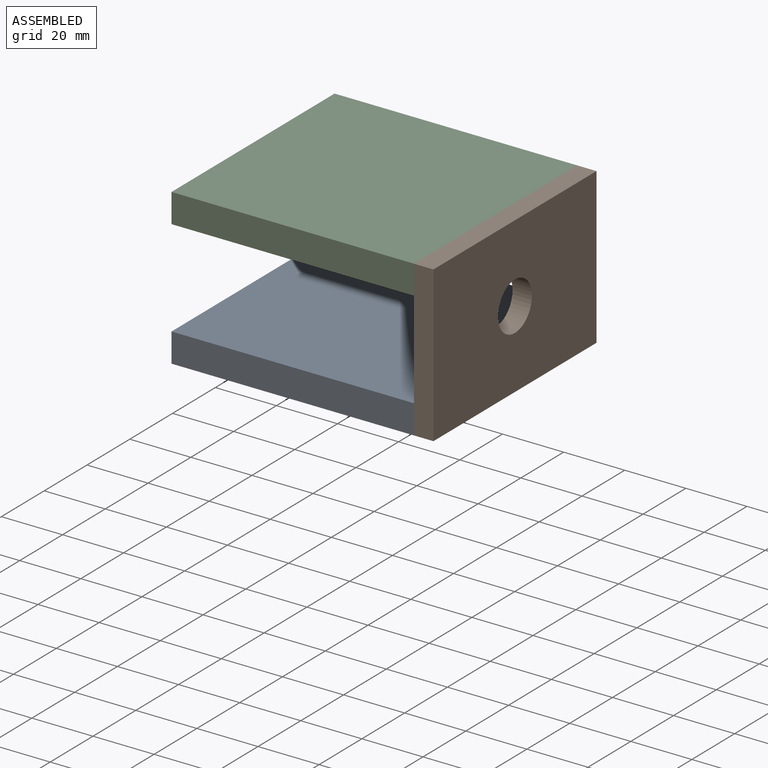
[diagram: assembled view]
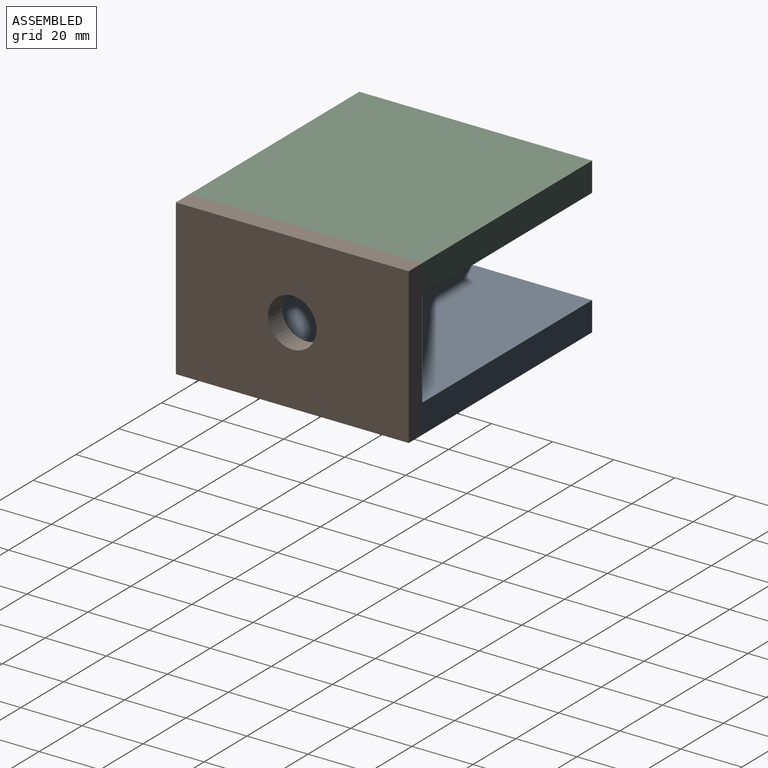
[diagram: assembled view, second angle]
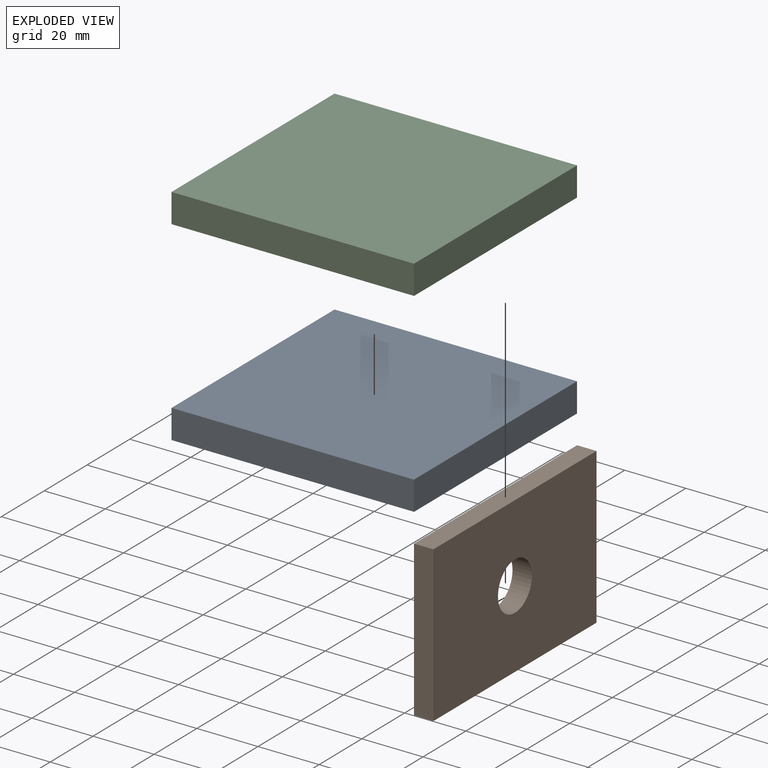
[diagram: exploded view]
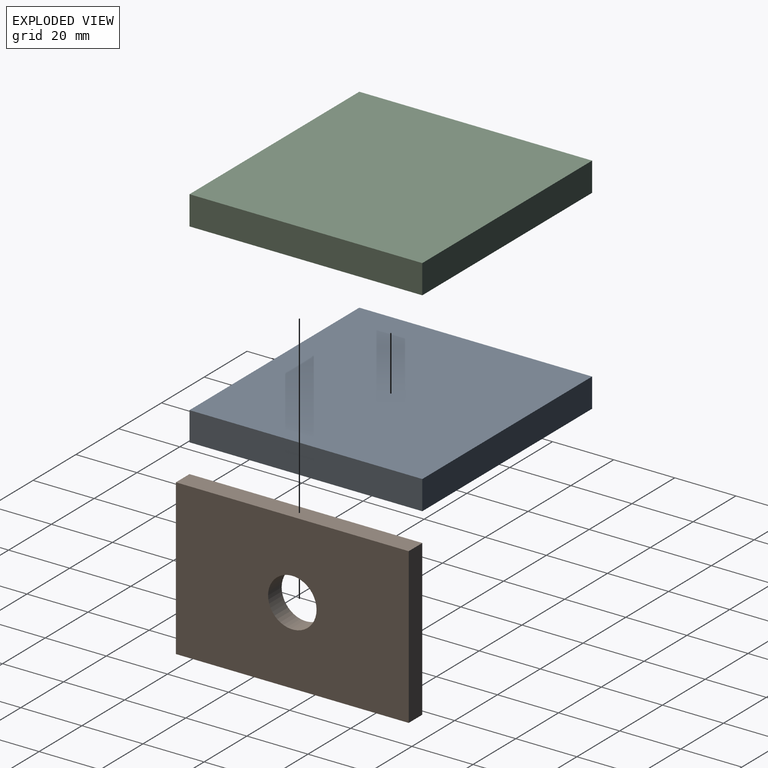
[diagram: exploded view, second angle]
ASSEMBLY  parts=3 mates=2
PART A: 6 faces, bbox 79.4x76.2x9.5 mm
  f0: plane 76.2x9.53mm, normal (-1,0,0), area 725.8mm2, adj f1,f3,f4,f5
  f1: plane 79.38x9.53mm, normal (0,-1,0), area 756mm2, adj f0,f2,f4,f5
  f2: plane 76.2x9.53mm, normal (1,0,0), area 725.8mm2, adj f1,f3,f4,f5
  f3: plane 79.38x9.53mm, normal (0,1,0), area 756mm2, adj f0,f2,f4,f5
  f4: plane 79.38x76.2mm, normal (0,0,-1), area 6048.4mm2, adj f0,f1,f2,f3
  f5: plane 79.38x76.2mm, normal (0,0,1), area 6048.4mm2, adj f0,f1,f2,f3
PART B: 7 faces, bbox 6.4x76.2x50.8 mm
  f0: plane 76.2x6.35mm, normal (0,0,-1), area 483.9mm2, adj f1,f2,f3,f4
  f1: plane 50.8x6.35mm, normal (0,-1,0), area 322.6mm2, adj f0,f2,f4,f5
  f2: plane 76.2x50.8mm, normal (1,0,0), area 3673mm2, adj f0,f1,f3,f5,f6
  f3: plane 50.8x6.35mm, normal (0,1,0), area 322.6mm2, adj f0,f2,f4,f5
  f4: plane 76.2x50.8mm, normal (-1,0,0), area 3673mm2, adj f0,f1,f3,f5,f6
  f5: plane 76.2x6.35mm, normal (0,0,1), area 483.9mm2, adj f1,f2,f3,f4
  f6: cylinder r=7.94mm len=15.88mm, axis (1,0,0), area 316.7mm2, adj f2,f4
PART C: same geometry as A
PLACE A rot(axis=(1,0,0),180deg) t=(-23.65,-25,7307.7)mm
PLACE B t=(-23.65,-25,-17.03)mm
PLACE C t=(-23.65,-25,-17.03)mm
MATE fastened A.f5 <-> B.f0  axis (0,0,-1) through (65.25,-25,3619.94)mm
MATE fastened B.f5 <-> C.f5  axis (0,0,1) through (65.25,-25,3670.74)mm
